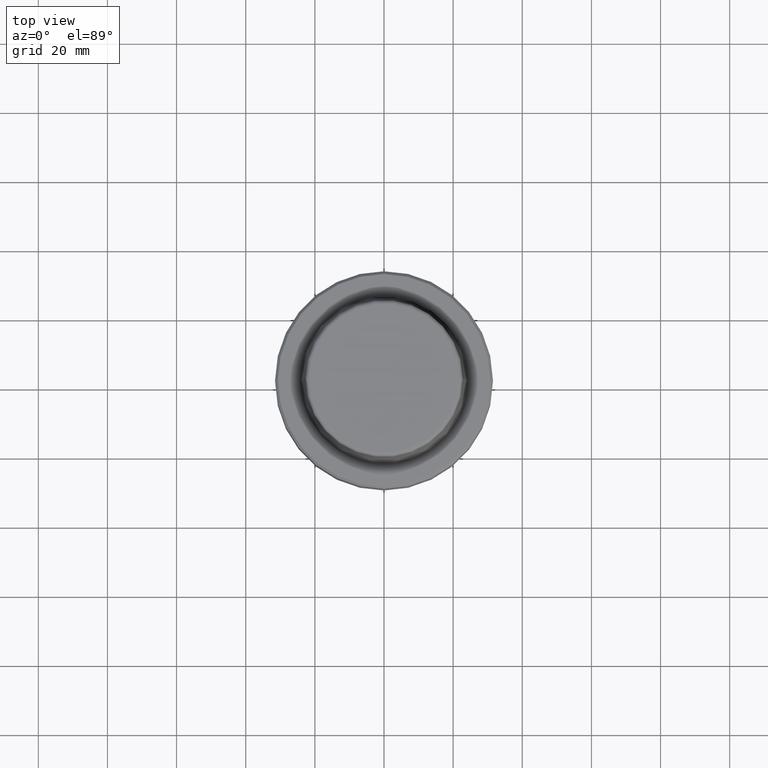
[diagram: clean part render]
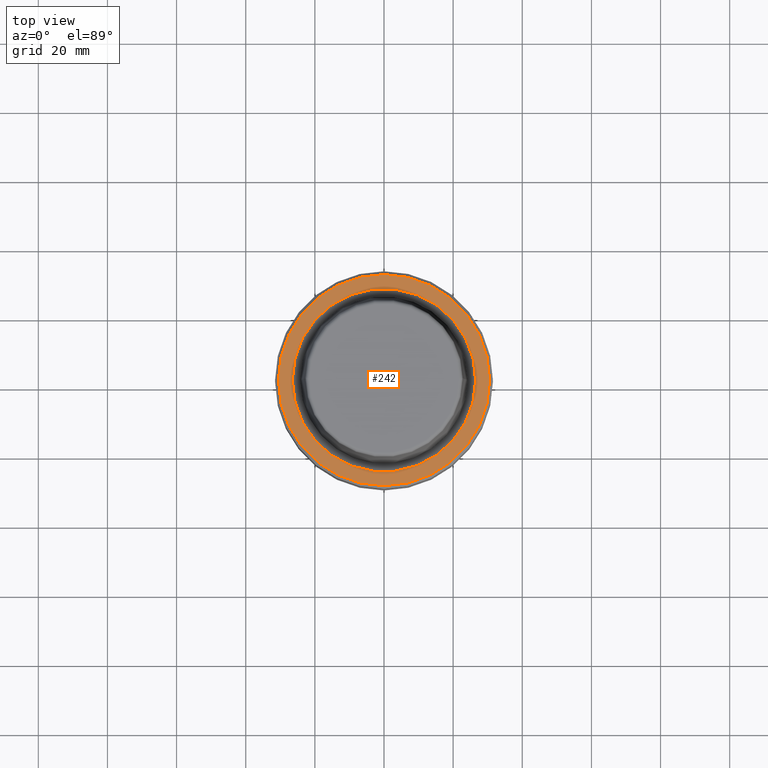
[diagram: same view with one face highlighted and labeled with its STEP entity id]
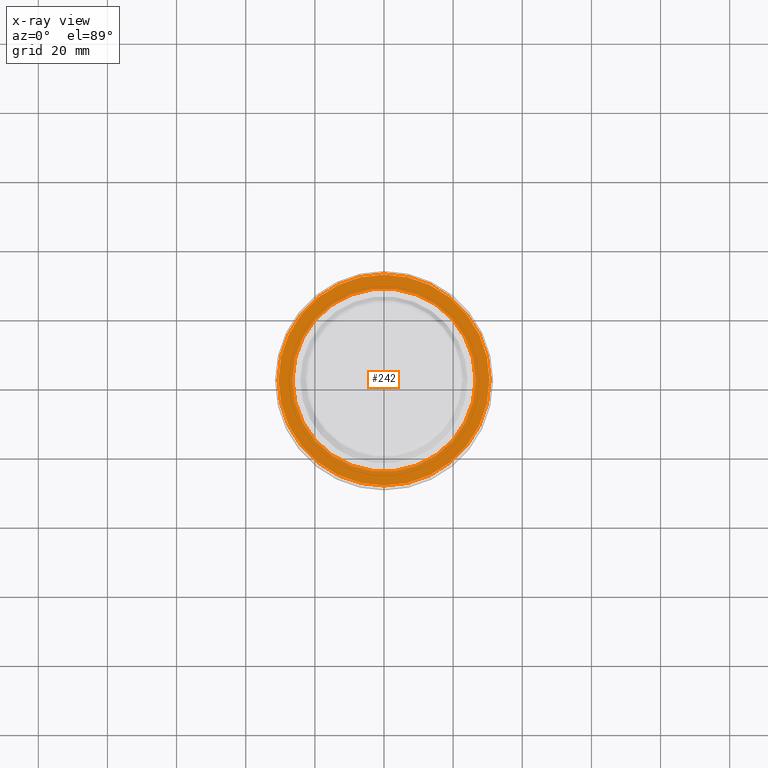
[diagram: x-ray of the same camera — body ghosted, the highlighted face saturated]
A machine part, top view. The second image highlights one B-rep face of the part: STEP entity #242.
The next image is the same camera in x-ray: the body ghosted, the highlighted face saturated — about 0% of this face is hidden behind the body in this view.
In plain terms, the highlighted planar face has unit normal (0, 0, -1).
Its self-contained STEP definition (entity closure, byte-faithful):
#9 = CARTESIAN_POINT ( 'NONE',  ( 0.0000000000000000000, 0.0000000000000000000, 0.0000000000000000000 ) ) ;
#106 = EDGE_LOOP ( 'NONE', ( #910, #1036 ) ) ;
#124 = DIRECTION ( 'NONE',  ( 1.000000000000000000, 0.0000000000000000000, 0.0000000000000000000 ) ) ;
#132 = CARTESIAN_POINT ( 'NONE',  ( 0.0000000000000000000, 0.0000000000000000000, 0.0000000000000000000 ) ) ;
#172 = DIRECTION ( 'NONE',  ( 1.000000000000000000, 0.0000000000000000000, 0.0000000000000000000 ) ) ;
#178 = VERTEX_POINT ( 'NONE', #351 ) ;
#233 = FACE_BOUND ( 'NONE', #490, .T. ) ;
#234 = CARTESIAN_POINT ( 'NONE',  ( 26.52499999999999900, 0.0000000000000000000, 0.0000000000000000000 ) ) ;
#242 = ADVANCED_FACE ( 'NONE', ( #233, #1058 ), #1048, .F. ) ;
#257 = EDGE_CURVE ( 'NONE', #701, #178, #730, .T. ) ;
#266 = CIRCLE ( 'NONE', #332, 26.52499999999999900 ) ;
#281 = DIRECTION ( 'NONE',  ( 1.000000000000000000, 0.0000000000000000000, 0.0000000000000000000 ) ) ;
#332 = AXIS2_PLACEMENT_3D ( 'NONE', #1121, #641, #124 ) ;
#342 = AXIS2_PLACEMENT_3D ( 'NONE', #1156, #1057, #281 ) ;
#351 = CARTESIAN_POINT ( 'NONE',  ( 30.53431457505076100, 0.0000000000000000000, 0.0000000000000000000 ) ) ;
#373 = DIRECTION ( 'NONE',  ( -0.0000000000000000000, -0.0000000000000000000, 1.000000000000000000 ) ) ;
#407 = ORIENTED_EDGE ( 'NONE', *, *, #793, .F. ) ;
#464 = CARTESIAN_POINT ( 'NONE',  ( -30.53431457505076100, 3.756694181974138600E-015, 0.0000000000000000000 ) ) ;
#490 = EDGE_LOOP ( 'NONE', ( #747, #407 ) ) ;
#608 = AXIS2_PLACEMENT_3D ( 'NONE', #9, #373, #172 ) ;
#616 = DIRECTION ( 'NONE',  ( 1.000000000000000000, 0.0000000000000000000, 0.0000000000000000000 ) ) ;
#641 = DIRECTION ( 'NONE',  ( -0.0000000000000000000, -0.0000000000000000000, 1.000000000000000000 ) ) ;
#676 = DIRECTION ( 'NONE',  ( -1.000000000000000000, 0.0000000000000000000, -0.0000000000000000000 ) ) ;
#694 = DIRECTION ( 'NONE',  ( 0.0000000000000000000, 0.0000000000000000000, -1.000000000000000000 ) ) ;
#701 = VERTEX_POINT ( 'NONE', #464 ) ;
#718 = DIRECTION ( 'NONE',  ( -0.0000000000000000000, -0.0000000000000000000, 1.000000000000000000 ) ) ;
#730 = CIRCLE ( 'NONE', #939, 30.53431457505076100 ) ;
#747 = ORIENTED_EDGE ( 'NONE', *, *, #1056, .F. ) ;
#793 = EDGE_CURVE ( 'NONE', #950, #1192, #266, .T. ) ;
#878 = AXIS2_PLACEMENT_3D ( 'NONE', #1157, #694, #676 ) ;
#904 = CARTESIAN_POINT ( 'NONE',  ( -26.52499999999999900, 3.248375634738354300E-015, 0.0000000000000000000 ) ) ;
#910 = ORIENTED_EDGE ( 'NONE', *, *, #1091, .T. ) ;
#939 = AXIS2_PLACEMENT_3D ( 'NONE', #132, #718, #616 ) ;
#950 = VERTEX_POINT ( 'NONE', #904 ) ;
#994 = CIRCLE ( 'NONE', #608, 30.53431457505076100 ) ;
#1036 = ORIENTED_EDGE ( 'NONE', *, *, #257, .T. ) ;
#1048 = PLANE ( 'NONE',  #878 ) ;
#1056 = EDGE_CURVE ( 'NONE', #1192, #950, #1210, .T. ) ;
#1057 = DIRECTION ( 'NONE',  ( -0.0000000000000000000, -0.0000000000000000000, 1.000000000000000000 ) ) ;
#1058 = FACE_OUTER_BOUND ( 'NONE', #106, .T. ) ;
#1091 = EDGE_CURVE ( 'NONE', #178, #701, #994, .T. ) ;
#1121 = CARTESIAN_POINT ( 'NONE',  ( 0.0000000000000000000, 0.0000000000000000000, 0.0000000000000000000 ) ) ;
#1156 = CARTESIAN_POINT ( 'NONE',  ( 0.0000000000000000000, 0.0000000000000000000, 0.0000000000000000000 ) ) ;
#1157 = CARTESIAN_POINT ( 'NONE',  ( 0.0000000000000000000, 26.52499999999999900, -1.111307226797642000E-015 ) ) ;
#1192 = VERTEX_POINT ( 'NONE', #234 ) ;
#1210 = CIRCLE ( 'NONE', #342, 26.52499999999999900 ) ;